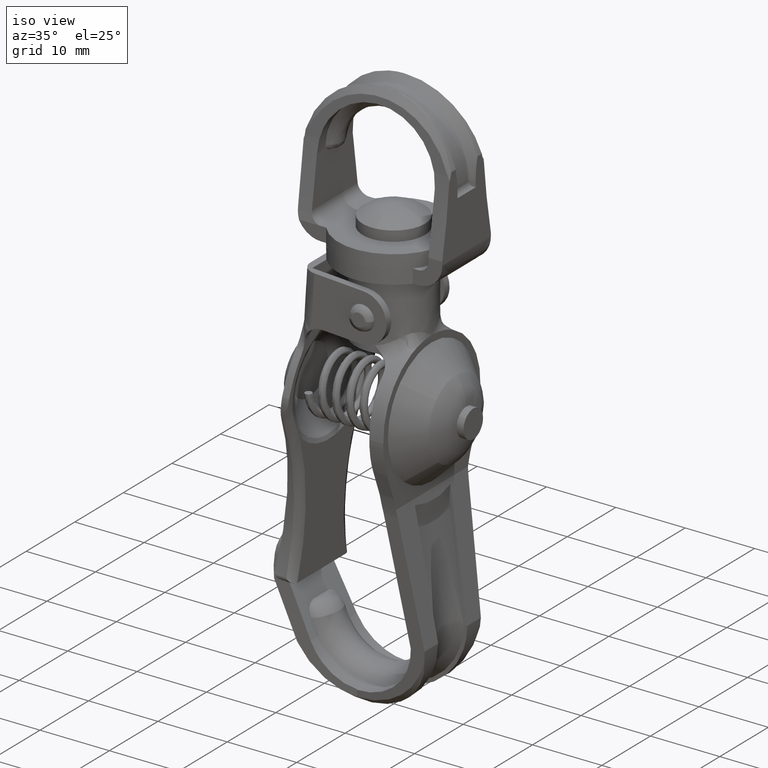
[diagram: clean part render]
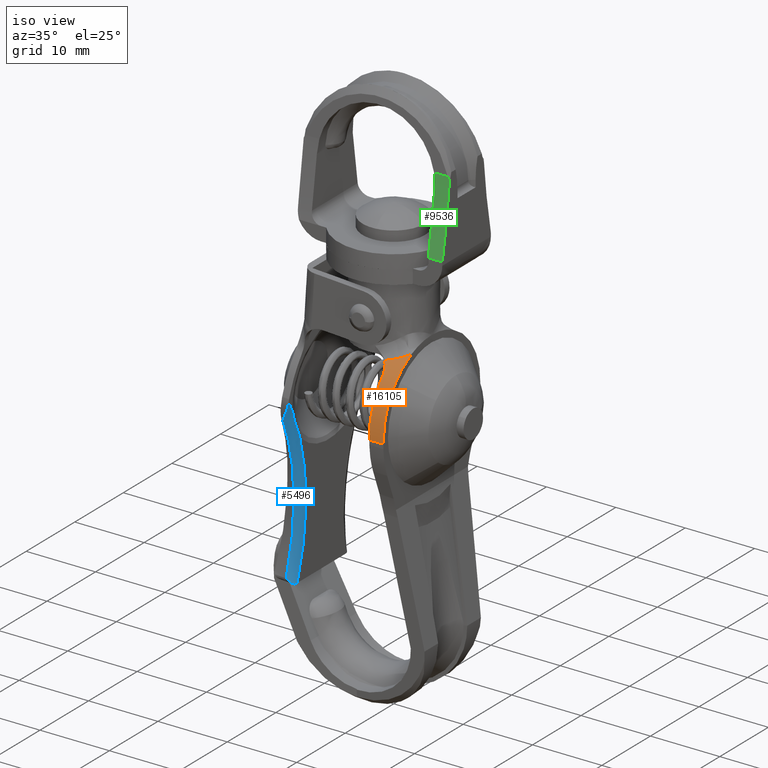
[diagram: same view with three faces highlighted in distinct colors, each labeled with its STEP entity id]
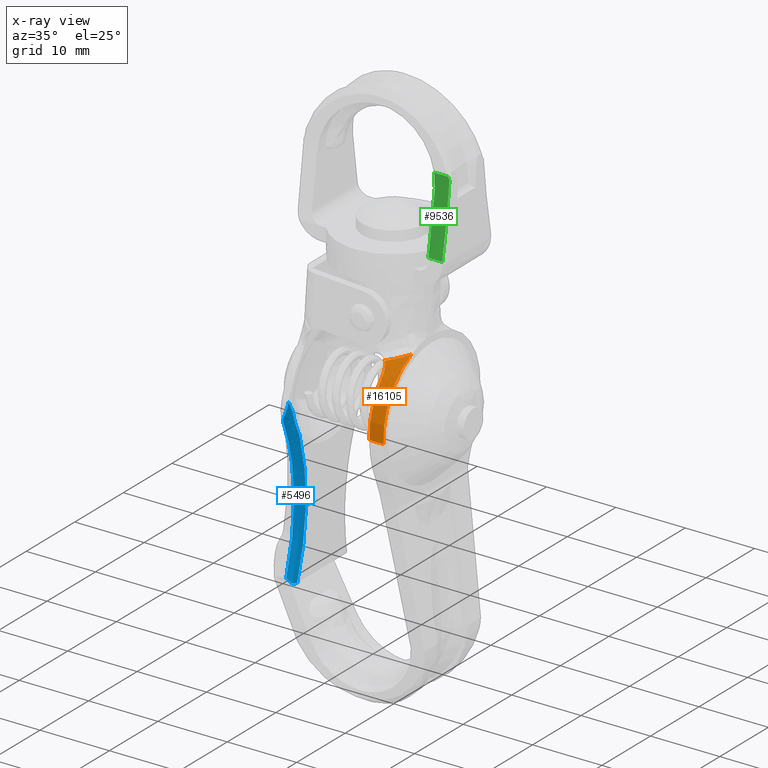
[diagram: x-ray of the same camera — body ghosted, the three highlighted faces saturated]
A machine part, iso view with three faces highlighted in distinct colors.
The next image is the same camera in x-ray (body ghosted, the three faces saturated) — at least one of them is partly hidden behind the body in this view.
Their STEP definitions:

[orange] entity #16105 — the highlighted face is a freeform B-spline surface patch.
#14485=CARTESIAN_POINT('',(3.704473995661685,-7.353892884456830,6.906123182015670));
#14486=VERTEX_POINT('',#14485);
#14492=CARTESIAN_POINT('',(2.932842504623310,-5.814644952985891,8.238389407936412));
#14493=VERTEX_POINT('',#14492);
#14494=CARTESIAN_POINT('',(2.932842504623310,-5.814644952985891,8.238389407936412));
#14495=CARTESIAN_POINT('',(3.067483014370076,-5.924073490844959,8.164995647464936));
#14496=CARTESIAN_POINT('',(3.180983512496648,-6.043734293015205,8.080167105601763));
#14497=CARTESIAN_POINT('',(3.301559189657866,-6.201974931807095,7.960368768543419));
#14498=CARTESIAN_POINT('',(3.324591305818853,-6.234066636130516,7.935713429474466));
#14499=CARTESIAN_POINT('',(3.368556967564027,-6.299068274945930,7.884998488260407));
#14500=CARTESIAN_POINT('',(3.389550085948371,-6.332081949129399,7.858854713257275));
#14501=CARTESIAN_POINT('',(3.448931046570505,-6.431355571619094,7.779017706729446));
#14502=CARTESIAN_POINT('',(3.483753749177327,-6.497803912196587,7.723966852646108));
#14503=CARTESIAN_POINT('',(3.575728291840640,-6.697387697437594,7.553508462268958));
#14504=CARTESIAN_POINT('',(3.620490457498626,-6.830738408417887,7.432814951041432));
#14505=CARTESIAN_POINT('',(3.667044382723867,-7.029676484187871,7.241359445320678));
#14506=CARTESIAN_POINT('',(3.679075971307249,-7.095819203849215,7.175780168891687));
#14507=CARTESIAN_POINT('',(3.696520449852591,-7.226082471790815,7.042683713128283));
#14508=CARTESIAN_POINT('',(3.701985293785278,-7.290403943559306,6.974977267263065));
#14509=CARTESIAN_POINT('',(3.704473995661690,-7.353892884456830,6.906123182015681));
#14510=B_SPLINE_CURVE_WITH_KNOTS('',3,(#14494,#14495,#14496,#14497,#14498,#14499,#14500,#14501,#14502,#14503,#14504,#14505,#14506,#14507,#14508,#14509),.UNSPECIFIED.,.F.,.U.,(4,2,2,2,2,2,2,4),(0.0,0.249999999999998,0.312499999999999,0.374999999999999,0.500000000000000,0.750000000000000,0.875000000000000,1.0),.UNSPECIFIED.);
#14511=EDGE_CURVE('',#14493,#14486,#14510,.T.);
#14741=CARTESIAN_POINT('',(5.647764682000930,-4.249182927994040,9.253716945517999));
#14742=VERTEX_POINT('',#14741);
#14872=CARTESIAN_POINT('',(5.647764682000941,-4.249182927994040,9.253716945517990));
#14873=CARTESIAN_POINT('',(5.453398689945063,-4.426713345748622,9.163303977775854));
#14874=CARTESIAN_POINT('',(5.250753499541634,-4.591122085540752,9.072417934927030));
#14875=CARTESIAN_POINT('',(4.829653671923597,-4.896581916719367,8.892483856138558));
#14876=CARTESIAN_POINT('',(4.611192873254055,-5.037617532269877,8.803426252419401));
#14877=CARTESIAN_POINT('',(4.158268222279747,-5.297754743192515,8.629930631522521));
#14878=CARTESIAN_POINT('',(3.923804810698989,-5.416852077282035,8.545484635422522));
#14879=CARTESIAN_POINT('',(3.559335311268981,-5.579273143178678,8.424575040579947));
#14880=CARTESIAN_POINT('',(3.436128774582945,-5.630507583337516,8.385377710743146));
#14881=CARTESIAN_POINT('',(3.186824775327522,-5.726992155774689,8.309757602140662));
#14882=CARTESIAN_POINT('',(3.060630328834254,-5.772285704262623,8.273302416284194));
#14883=CARTESIAN_POINT('',(2.932842504623309,-5.814644952985891,8.238389407936412));
#14884=B_SPLINE_CURVE_WITH_KNOTS('',3,(#14872,#14873,#14874,#14875,#14876,#14877,#14878,#14879,#14880,#14881,#14882,#14883),.UNSPECIFIED.,.F.,.U.,(4,2,2,2,2,4),(0.0,0.250000000000000,0.500000000000000,0.750000000000000,0.875000000000000,1.0),.UNSPECIFIED.);
#14885=EDGE_CURVE('',#14742,#14493,#14884,.T.);
#15854=CARTESIAN_POINT('',(3.964860946678015,-9.990651710268558,-0.297915796102802));
#15855=VERTEX_POINT('',#15854);
#15856=CARTESIAN_POINT('',(5.990358248113680,-9.990651710268580,-0.224705050268027));
#15857=VERTEX_POINT('',#15856);
#15858=CARTESIAN_POINT('',(3.964860946678015,-9.990651710268558,-0.297915796102802));
#15859=CARTESIAN_POINT('',(5.990358248113680,-9.990651710268580,-0.224705050268027));
#15860=QUASI_UNIFORM_CURVE('',1,(#15858,#15859),.UNSPECIFIED.,.F.,.U.);
#15861=EDGE_CURVE('',#15855,#15857,#15860,.T.);
#15993=CARTESIAN_POINT('',(5.990358248113680,-9.990651710268580,-0.224705050268027));
#15994=CARTESIAN_POINT('',(5.971583838942586,-10.013167752909551,0.294720270132207));
#15995=CARTESIAN_POINT('',(5.932799615752554,-9.975757761932284,1.367750445056557));
#15996=CARTESIAN_POINT('',(5.872954524814364,-9.647793642131100,3.023464627679918));
#15997=CARTESIAN_POINT('',(5.818099863733885,-9.058889982501164,4.541110250906589));
#15998=CARTESIAN_POINT('',(5.761711016773591,-8.143098373489087,6.101201683474104));
#15999=CARTESIAN_POINT('',(5.712776048223886,-6.979640319211206,7.455069146683912));
#16000=CARTESIAN_POINT('',(5.673126806859736,-5.576139683977968,8.552031491090878));
#16001=CARTESIAN_POINT('',(5.654809899186152,-4.664732225281518,9.058799270060298));
#16002=CARTESIAN_POINT('',(5.647764682000930,-4.249182927994040,9.253716945517999));
#16003=B_SPLINE_CURVE_WITH_KNOTS('',3,(#15993,#15994,#15995,#15996,#15997,#15998,#15999,#16000,#16001,#16002),.UNSPECIFIED.,.F.,.U.,(4,1,1,1,1,1,1,4),(0.000000052916629,1.560759367172324,3.213363644984664,5.049575800225398,6.426712930895320,8.630166471725074,10.374571651493570,11.751717420205649),.UNSPECIFIED.);
#16004=EDGE_CURVE('',#15857,#14742,#16003,.T.);
#16074=CARTESIAN_POINT('',(5.710893573673974,-3.903718066731711,9.410355303689590));
#16075=CARTESIAN_POINT('',(2.823743870020613,-3.903718066731711,9.306000495123806));
#16076=CARTESIAN_POINT('',(5.814598180297007,-10.674798023947035,6.541194520452282));
#16077=CARTESIAN_POINT('',(2.927448476643647,-10.674798023947035,6.436839711886495));
#16078=CARTESIAN_POINT('',(6.078966429236269,-9.951526197922838,-0.772993700200594));
#16079=CARTESIAN_POINT('',(3.191816725582909,-9.951526197922838,-0.877348508766379));
#16087=(BOUNDED_SURFACE()B_SPLINE_SURFACE(1,2,((#16074,#16076,#16078),(#16075,#16077,#16079)),.UNSPECIFIED.,.F.,.F.,.U.)B_SPLINE_SURFACE_WITH_KNOTS((2,2),(3,3),(0.0,2.889035018371444),(0.0,13.125386693727220),.UNSPECIFIED.)GEOMETRIC_REPRESENTATION_ITEM()RATIONAL_B_SPLINE_SURFACE(((1.0,0.802515419671084,0.992389697667664),(1.0,0.802515419671084,0.992389697667664)))REPRESENTATION_ITEM('')SURFACE());
#16088=ORIENTED_EDGE('',*,*,#16004,.T.);
#16089=ORIENTED_EDGE('',*,*,#14885,.T.);
#16090=ORIENTED_EDGE('',*,*,#14511,.T.);
#16091=CARTESIAN_POINT('',(3.964860946678015,-9.990651710268558,-0.297915796102802));
#16092=CARTESIAN_POINT('',(3.945611863007761,-10.013746299942730,0.234642185440968));
#16093=CARTESIAN_POINT('',(3.908466037501571,-9.975868565989750,1.262343357778780));
#16094=CARTESIAN_POINT('',(3.857394163860893,-9.702995648871985,2.675331861837540));
#16095=CARTESIAN_POINT('',(3.803938972598715,-9.202732934883329,4.154258820092077));
#16096=CARTESIAN_POINT('',(3.752585324886316,-8.451541742581673,5.575043073465872));
#16097=CARTESIAN_POINT('',(3.718642083734946,-7.715371670673282,6.514139411989918));
#16098=CARTESIAN_POINT('',(3.704473995661685,-7.353892884456830,6.906123182015670));
#16099=B_SPLINE_CURVE_WITH_KNOTS('',3,(#16091,#16092,#16093,#16094,#16095,#16096,#16097,#16098),.UNSPECIFIED.,.F.,.U.,(4,1,1,1,1,4),(0.000000014893383,1.600222269831716,3.077368118420968,4.308284312007594,6.277810105959688,7.878032360897890),.UNSPECIFIED.);
#16100=EDGE_CURVE('',#15855,#14486,#16099,.T.);
#16101=ORIENTED_EDGE('',*,*,#16100,.F.);
#16102=ORIENTED_EDGE('',*,*,#15861,.T.);
#16103=EDGE_LOOP('',(#16088,#16089,#16090,#16101,#16102));
#16104=FACE_OUTER_BOUND('',#16103,.T.);
#16105=ADVANCED_FACE('',(#16104),#16087,.T.);

[blue] entity #5496 — the highlighted face is a freeform B-spline surface patch.
#4847=CARTESIAN_POINT('',(-8.111113999999789,-8.020887225031480,-1.338465833992412));
#4848=VERTEX_POINT('',#4847);
#4860=CARTESIAN_POINT('',(-8.111113999999789,-6.234676845374630,-5.220625182790630));
#4861=VERTEX_POINT('',#4860);
#4862=CARTESIAN_POINT('',(-8.111113999999789,-8.020887225031480,-1.338465833992416));
#4863=CARTESIAN_POINT('',(-8.111113999999793,-7.963035476039713,-1.507112894285488));
#4864=CARTESIAN_POINT('',(-8.112382693885488,-7.903085728195177,-1.675388827458695));
#4865=CARTESIAN_POINT('',(-8.115800445750471,-7.779099122009066,-2.009835110762253));
#4866=CARTESIAN_POINT('',(-8.117949588102221,-7.715034852080366,-2.176226053313760));
#4867=CARTESIAN_POINT('',(-8.123882762982293,-7.516550372734356,-2.672885421342822));
#4868=CARTESIAN_POINT('',(-8.126898180099989,-7.375831171991509,-3.000639489041136));
#4869=CARTESIAN_POINT('',(-8.126898180099991,-7.077343721437489,-3.649373736621674));
#4870=CARTESIAN_POINT('',(-8.123882762982291,-6.919981965336392,-3.969470440864758));
#4871=CARTESIAN_POINT('',(-8.117949588102221,-6.671927102338390,-4.443322106827143));
#4872=CARTESIAN_POINT('',(-8.115800445750470,-6.587241471228235,-4.600225007782322));
#4873=CARTESIAN_POINT('',(-8.112382693885488,-6.413911556215162,-4.911968067834466));
#4874=CARTESIAN_POINT('',(-8.111113999999791,-6.325117578483775,-5.066972556384238));
#4875=CARTESIAN_POINT('',(-8.111113999999789,-6.234676845374630,-5.220625182790630));
#4876=B_SPLINE_CURVE_WITH_KNOTS('',3,(#4862,#4863,#4864,#4865,#4866,#4867,#4868,#4869,#4870,#4871,#4872,#4873,#4874,#4875),.UNSPECIFIED.,.F.,.U.,(4,2,2,2,2,2,4),(0.0,0.125000000000000,0.250000000000000,0.500000000000000,0.750000000000000,0.875000000000000,1.0),.UNSPECIFIED.);
#4877=EDGE_CURVE('',#4848,#4861,#4876,.T.);
#5167=CARTESIAN_POINT('',(-9.111113999999748,-5.850394112787550,-24.643796227272752));
#5168=VERTEX_POINT('',#5167);
#5169=CARTESIAN_POINT('',(-8.187251576542691,-5.363492406830431,-25.257491999999999));
#5170=VERTEX_POINT('',#5169);
#5171=CARTESIAN_POINT('',(-9.111113999999748,-5.850394112787550,-24.643796227272752));
#5172=CARTESIAN_POINT('',(-9.066597456278835,-5.857497477248077,-24.674216358038411));
#5173=CARTESIAN_POINT('',(-9.021509676745701,-5.861804002736861,-24.705701881198980));
#5174=CARTESIAN_POINT('',(-8.932559380039141,-5.864360670305960,-24.768790038026410));
#5175=CARTESIAN_POINT('',(-8.888584956021761,-5.862670619610713,-24.800463119424379));
#5176=CARTESIAN_POINT('',(-8.801469231371218,-5.853110874521246,-24.863789513212691));
#5177=CARTESIAN_POINT('',(-8.758329336462831,-5.845247587557293,-24.895445972703520));
#5178=CARTESIAN_POINT('',(-8.672742266643288,-5.822573123657877,-24.958400556759170));
#5179=CARTESIAN_POINT('',(-8.630025056481731,-5.807613394871149,-24.989902155992301));
#5180=CARTESIAN_POINT('',(-8.547510709892853,-5.770359566257266,-25.050266737992480));
#5181=CARTESIAN_POINT('',(-8.507502870563418,-5.748071665870271,-25.079296602486000));
#5182=CARTESIAN_POINT('',(-8.430047164906574,-5.694718470996731,-25.133987289587669));
#5183=CARTESIAN_POINT('',(-8.392336733643070,-5.663301503666474,-25.159819203942529));
#5184=CARTESIAN_POINT('',(-8.340211962210690,-5.609992215703992,-25.193010096776419));
#5185=CARTESIAN_POINT('',(-8.323490240589672,-5.591142349311309,-25.203206353270840));
#5186=CARTESIAN_POINT('',(-8.291400673322704,-5.551040604842259,-25.221508653198679));
#5187=CARTESIAN_POINT('',(-8.275919214407397,-5.529606347536459,-25.229667159100771));
#5188=CARTESIAN_POINT('',(-8.232568875118545,-5.462638741008902,-25.249775346350312));
#5189=CARTESIAN_POINT('',(-8.207875254122444,-5.414797000137155,-25.257491999999999));
#5190=CARTESIAN_POINT('',(-8.187251576542691,-5.363492406830431,-25.257491999999999));
#5191=B_SPLINE_CURVE_WITH_KNOTS('',3,(#5171,#5172,#5173,#5174,#5175,#5176,#5177,#5178,#5179,#5180,#5181,#5182,#5183,#5184,#5185,#5186,#5187,#5188,#5189,#5190),.UNSPECIFIED.,.F.,.U.,(4,2,2,2,2,2,2,2,2,4),(0.0,0.124999999999999,0.249999999999999,0.374999999999998,0.499999999999997,0.624999999999996,0.749999999999995,0.812499999999996,0.874999999999996,1.0),.UNSPECIFIED.);
#5192=EDGE_CURVE('',#5168,#5170,#5191,.T.);
#5405=CARTESIAN_POINT('',(-8.113521678711397,-5.265943238730278,-26.630727057100103));
#5406=CARTESIAN_POINT('',(-8.113521678711395,-0.894629661462598,-11.604761865099075));
#5407=CARTESIAN_POINT('',(-8.113521678711399,-9.592338371595986,1.404383976796185));
#5408=CARTESIAN_POINT('',(-8.033777861825994,-6.367371043196563,-26.310302628151824));
#5409=CARTESIAN_POINT('',(-8.033777861825993,-2.145428517047235,-11.797785893948209));
#5410=CARTESIAN_POINT('',(-8.033777861825993,-10.545930021751555,0.766827714281393));
#5411=CARTESIAN_POINT('',(-9.180837787719447,-6.290389979100159,-26.332697753282034));
#5412=CARTESIAN_POINT('',(-9.180837787719444,-2.058007601683537,-11.784295045908296));
#5413=CARTESIAN_POINT('',(-9.180837787719447,-10.479281531814451,0.811387838250208));
#5421=(BOUNDED_SURFACE()B_SPLINE_SURFACE(2,2,((#5405,#5408,#5411),(#5406,#5409,#5412),(#5407,#5410,#5413)),.UNSPECIFIED.,.F.,.F.,.U.)B_SPLINE_SURFACE_WITH_KNOTS((3,3),(3,3),(0.0,29.760399225233510),(0.0,1.822370353776502),.UNSPECIFIED.)GEOMETRIC_REPRESENTATION_ITEM()RATIONAL_B_SPLINE_SURFACE(((0.858144637585666,0.561573838949323,0.853390923715780),(0.778184690598158,0.509247678037460,0.773873916871905),(0.859026191173277,0.562150731713959,0.854267593915053)))REPRESENTATION_ITEM('')SURFACE());
#5422=CARTESIAN_POINT('',(-9.111113999999748,-8.466533957981730,-2.646529059635035));
#5423=VERTEX_POINT('',#5422);
#5424=CARTESIAN_POINT('',(-9.111113999999748,-5.850394112787550,-24.643796227272752));
#5425=CARTESIAN_POINT('',(-9.111113999999736,-5.542470106648572,-23.325317633817360));
#5426=CARTESIAN_POINT('',(-9.111113999999757,-5.140811776686233,-20.940621259299789));
#5427=CARTESIAN_POINT('',(-9.111113999999802,-4.901925599113977,-16.644751530865229));
#5428=CARTESIAN_POINT('',(-9.111113999999615,-5.205405425447482,-12.875185464205710));
#5429=CARTESIAN_POINT('',(-9.111114000000002,-6.010247845840665,-9.011098289773729));
#5430=CARTESIAN_POINT('',(-9.111113999999530,-6.969878259048958,-5.913337018835889));
#5431=CARTESIAN_POINT('',(-9.111113999999860,-7.937354270203171,-3.698255193332341));
#5432=CARTESIAN_POINT('',(-9.111113999999748,-8.466533957981730,-2.646529059635035));
#5433=B_SPLINE_CURVE_WITH_KNOTS('',3,(#5424,#5425,#5426,#5427,#5428,#5429,#5430,#5431,#5432),.UNSPECIFIED.,.F.,.U.,(4,1,1,1,1,1,4),(0.000000010288922,4.061872947679085,7.240745651918113,12.892034795900750,15.364491405779750,19.073176028193821,22.605237110367138),.UNSPECIFIED.);
#5434=EDGE_CURVE('',#5168,#5423,#5433,.T.);
#5435=ORIENTED_EDGE('',*,*,#5434,.F.);
#5436=ORIENTED_EDGE('',*,*,#5192,.T.);
#5437=CARTESIAN_POINT('',(-8.111113999999789,-4.969214828132000,-25.257491999999999));
#5438=VERTEX_POINT('',#5437);
#5439=CARTESIAN_POINT('',(-8.111113999999789,-4.969214828132000,-25.257491999999999));
#5440=CARTESIAN_POINT('',(-8.110990884983250,-5.103897321757256,-25.257491999999949));
#5441=CARTESIAN_POINT('',(-8.136963268904358,-5.238544853217100,-25.257492000000092));
#5442=CARTESIAN_POINT('',(-8.187251576542691,-5.363492406830431,-25.257491999999999));
#5443=B_SPLINE_CURVE_WITH_KNOTS('',3,(#5439,#5440,#5441,#5442),.UNSPECIFIED.,.F.,.U.,(4,4),(0.000000012717705,0.404028532582103),.UNSPECIFIED.);
#5444=EDGE_CURVE('',#5438,#5170,#5443,.T.);
#5445=ORIENTED_EDGE('',*,*,#5444,.F.);
#5446=CARTESIAN_POINT('',(-8.111113999999789,-6.234676845374630,-5.220625182790630));
#5447=CARTESIAN_POINT('',(-8.111113999999772,-5.662414733654090,-6.707267096068197));
#5448=CARTESIAN_POINT('',(-8.111113999999800,-4.932546361633379,-9.100447832654808));
#5449=CARTESIAN_POINT('',(-8.111113999999768,-4.240975125118125,-12.809649721887540));
#5450=CARTESIAN_POINT('',(-8.111113999999811,-3.917994044804263,-16.518612982164850));
#5451=CARTESIAN_POINT('',(-8.111113999999782,-4.086798846972796,-20.826568499362949));
#5452=CARTESIAN_POINT('',(-8.111113999999791,-4.613940256043840,-23.813785848619489));
#5453=CARTESIAN_POINT('',(-8.111113999999789,-4.969214828132000,-25.257491999999999));
#5454=B_SPLINE_CURVE_WITH_KNOTS('',3,(#5446,#5447,#5448,#5449,#5450,#5451,#5452,#5453),.UNSPECIFIED.,.F.,.U.,(4,1,1,1,1,4),(7.745612E-009,4.778928371757262,7.486990209279357,11.310117617559900,15.929762948405140,20.390095880320018),.UNSPECIFIED.);
#5455=EDGE_CURVE('',#4861,#5438,#5454,.T.);
#5456=ORIENTED_EDGE('',*,*,#5455,.F.);
#5457=ORIENTED_EDGE('',*,*,#4877,.F.);
#5458=CARTESIAN_POINT('',(-8.111113999999750,-8.953685750105141,0.279675958894342));
#5459=VERTEX_POINT('',#5458);
#5460=CARTESIAN_POINT('',(-8.111113999999750,-8.953685750105141,0.279675958894342));
#5461=CARTESIAN_POINT('',(-8.111113999999763,-8.627795081033286,-0.250893922793307));
#5462=CARTESIAN_POINT('',(-8.111113999999798,-8.316699823523061,-0.790556280939000));
#5463=CARTESIAN_POINT('',(-8.111113999999789,-8.020887225031480,-1.338465833992412));
#5464=B_SPLINE_CURVE_WITH_KNOTS('',3,(#5460,#5461,#5462,#5463),.UNSPECIFIED.,.F.,.U.,(4,4),(6.889622E-011,1.867997353528542),.UNSPECIFIED.);
#5465=EDGE_CURVE('',#5459,#4848,#5464,.T.);
#5466=ORIENTED_EDGE('',*,*,#5465,.F.);
#5467=CARTESIAN_POINT('',(-9.111113999999748,-8.466533957981730,-2.646529059635035));
#5468=CARTESIAN_POINT('',(-9.096446152767562,-8.479946963507427,-2.619870655012470));
#5469=CARTESIAN_POINT('',(-9.082165010474652,-8.493354096826671,-2.592617536148845));
#5470=CARTESIAN_POINT('',(-9.053248830180319,-8.519462623729705,-2.538302411312164));
#5471=CARTESIAN_POINT('',(-9.038802704529308,-8.532266767558559,-2.511036586043073));
#5472=CARTESIAN_POINT('',(-8.995532287826517,-8.569936149044130,-2.428900974568471));
#5473=CARTESIAN_POINT('',(-8.966774060761587,-8.594058412497644,-2.373694049486069));
#5474=CARTESIAN_POINT('',(-8.880945183255221,-8.663478213138694,-2.206642424626857));
#5475=CARTESIAN_POINT('',(-8.824314621058804,-8.705835947539635,-2.093372722019690));
#5476=CARTESIAN_POINT('',(-8.713239606651200,-8.782659790809944,-1.862496286230988));
#5477=CARTESIAN_POINT('',(-8.659017598020668,-8.816960224410526,-1.745337882472492));
#5478=CARTESIAN_POINT('',(-8.554887987244980,-8.876987271522207,-1.508318814231515));
#5479=CARTESIAN_POINT('',(-8.504887656203133,-8.902775420905320,-1.388282088164520));
#5480=CARTESIAN_POINT('',(-8.410432585456205,-8.945690594333369,-1.144579036948418));
#5481=CARTESIAN_POINT('',(-8.365966335098170,-8.962820510177492,-1.020917593469783));
#5482=CARTESIAN_POINT('',(-8.304884661231089,-8.981635734842303,-0.832081618655595));
#5483=CARTESIAN_POINT('',(-8.285465556139833,-8.986758256388338,-0.768576568980395));
#5484=CARTESIAN_POINT('',(-8.248845339630064,-8.994601426471579,-0.640301525189945));
#5485=CARTESIAN_POINT('',(-8.231600092433716,-8.997323760376222,-0.575341136018625));
#5486=CARTESIAN_POINT('',(-8.184249019490441,-9.001658071390200,-0.380087986056433));
#5487=CARTESIAN_POINT('',(-8.158411689988395,-8.999487845943229,-0.249357655215586));
#5488=CARTESIAN_POINT('',(-8.121885352208812,-8.984653485738914,0.013731796639851));
#5489=CARTESIAN_POINT('',(-8.111113999999791,-8.971996894626990,0.146079587375230));
#5490=CARTESIAN_POINT('',(-8.111113999999750,-8.953685750105141,0.279675958894342));
#5491=B_SPLINE_CURVE_WITH_KNOTS('',3,(#5467,#5468,#5469,#5470,#5471,#5472,#5473,#5474,#5475,#5476,#5477,#5478,#5479,#5480,#5481,#5482,#5483,#5484,#5485,#5486,#5487,#5488,#5489,#5490),.UNSPECIFIED.,.F.,.U.,(4,2,2,2,2,2,2,2,2,2,2,4),(0.0,0.031249999999999,0.062499999999999,0.124999999999999,0.249999999999999,0.374999999999999,0.499999999999999,0.624999999999999,0.687499999999999,0.749999999999999,0.875000000000000,1.0),.UNSPECIFIED.);
#5492=EDGE_CURVE('',#5423,#5459,#5491,.T.);
#5493=ORIENTED_EDGE('',*,*,#5492,.F.);
#5494=EDGE_LOOP('',(#5435,#5436,#5445,#5456,#5457,#5466,#5493));
#5495=FACE_OUTER_BOUND('',#5494,.T.);
#5496=ADVANCED_FACE('',(#5495),#5421,.T.);

[green] entity #9536 — the highlighted face is a freeform B-spline surface patch.
#7597=CARTESIAN_POINT('',(10.500000000000160,-3.536514091533900,32.797379358694052));
#7598=VERTEX_POINT('',#7597);
#7615=CARTESIAN_POINT('',(10.273816575490740,-3.500210683237955,33.206983448503252));
#7616=VERTEX_POINT('',#7615);
#7622=CARTESIAN_POINT('',(10.273816575490740,-3.500210683237955,33.206983448503252));
#7623=CARTESIAN_POINT('',(10.500000000000160,-3.536514091533900,32.797379358694052));
#7624=QUASI_UNIFORM_CURVE('',1,(#7622,#7623),.UNSPECIFIED.,.F.,.U.);
#7625=EDGE_CURVE('',#7616,#7598,#7624,.T.);
#9468=CARTESIAN_POINT('',(8.214122104085313,-3.456247133793145,33.732796401754136));
#9469=CARTESIAN_POINT('',(10.557146834767689,-3.456247133793145,33.732796401754136));
#9470=CARTESIAN_POINT('',(8.214122104085313,-3.925237651746196,27.927830586242742));
#9471=CARTESIAN_POINT('',(10.557146834767680,-3.925237651746196,27.927830586242742));
#9472=CARTESIAN_POINT('',(8.214122104085313,-5.105642086449022,22.224829131243833));
#9473=CARTESIAN_POINT('',(10.557146834767687,-5.105642086449022,22.224829131243833));
#9481=(BOUNDED_SURFACE()B_SPLINE_SURFACE(1,2,((#9468,#9470,#9472),(#9469,#9471,#9473)),.UNSPECIFIED.,.F.,.F.,.U.)B_SPLINE_SURFACE_WITH_KNOTS((2,2),(3,3),(0.0,2.343024730682373),(0.295014714685082,11.933129156145450),.UNSPECIFIED.)GEOMETRIC_REPRESENTATION_ITEM()RATIONAL_B_SPLINE_SURFACE(((0.999865982025698,0.997270791503282,0.998483634600314),(0.999865982025698,0.997270791503282,0.998483634600314)))REPRESENTATION_ITEM('')SURFACE());
#9482=ORIENTED_EDGE('',*,*,#7625,.F.);
#9483=CARTESIAN_POINT('',(8.269875223497870,-3.500210683237955,33.206983448503252));
#9484=VERTEX_POINT('',#9483);
#9485=CARTESIAN_POINT('',(8.269875223497870,-3.500210683237955,33.206983448503252));
#9486=CARTESIAN_POINT('',(10.273816575490740,-3.500210683237955,33.206983448503252));
#9487=QUASI_UNIFORM_CURVE('',1,(#9485,#9486),.UNSPECIFIED.,.F.,.U.);
#9488=EDGE_CURVE('',#9484,#7616,#9487,.T.);
#9489=ORIENTED_EDGE('',*,*,#9488,.F.);
#9490=CARTESIAN_POINT('',(8.500000000000171,-3.690754742306885,31.242507999999901));
#9491=VERTEX_POINT('',#9490);
#9492=CARTESIAN_POINT('',(8.269875223497870,-3.500210683237955,33.206983448503252));
#9493=CARTESIAN_POINT('',(8.422776901954578,-3.555704560136136,32.563349916547153));
#9494=CARTESIAN_POINT('',(8.500150708469450,-3.619799621177600,31.902570667685989));
#9495=CARTESIAN_POINT('',(8.500000000000171,-3.690754742306885,31.242507999999901));
#9496=B_SPLINE_CURVE_WITH_KNOTS('',3,(#9492,#9493,#9494,#9495),.UNSPECIFIED.,.F.,.U.,(4,4),(1.645461E-009,1.991596695429569),.UNSPECIFIED.);
#9497=EDGE_CURVE('',#9484,#9491,#9496,.T.);
#9498=ORIENTED_EDGE('',*,*,#9497,.T.);
#9499=CARTESIAN_POINT('',(8.500000000000171,-5.000008132483070,22.742507999999798));
#9500=VERTEX_POINT('',#9499);
#9501=CARTESIAN_POINT('',(8.500000000000171,-5.000008132483070,22.742507999999798));
#9502=CARTESIAN_POINT('',(8.500000000000171,-4.151188346627333,26.962596520283800));
#9503=CARTESIAN_POINT('',(8.500000000000171,-3.690754742306885,31.242507999999901));
#9511=(BOUNDED_CURVE()B_SPLINE_CURVE(2,(#9501,#9502,#9503),.UNSPECIFIED.,.F.,.U.)CURVE()GEOMETRIC_REPRESENTATION_ITEM()QUASI_UNIFORM_CURVE()RATIONAL_B_SPLINE_CURVE((1.0,0.998957729942634,1.0))REPRESENTATION_ITEM(''));
#9512=EDGE_CURVE('',#9500,#9491,#9511,.T.);
#9513=ORIENTED_EDGE('',*,*,#9512,.F.);
#9514=CARTESIAN_POINT('',(10.500000000000179,-5.000008132483070,22.742507999999798));
#9515=VERTEX_POINT('',#9514);
#9516=CARTESIAN_POINT('',(8.500000000000171,-5.000008132483070,22.742507999999798));
#9517=CARTESIAN_POINT('',(10.500000000000179,-5.000008132483070,22.742507999999798));
#9518=QUASI_UNIFORM_CURVE('',1,(#9516,#9517),.UNSPECIFIED.,.F.,.U.);
#9519=EDGE_CURVE('',#9500,#9515,#9518,.T.);
#9520=ORIENTED_EDGE('',*,*,#9519,.T.);
#9521=CARTESIAN_POINT('',(10.500000000000160,-3.536514091533900,32.797379358694052));
#9522=CARTESIAN_POINT('',(10.500000000000169,-3.996749120902827,27.730424959547754));
#9523=CARTESIAN_POINT('',(10.500000000000179,-5.000008132483070,22.742507999999798));
#9531=(BOUNDED_CURVE()B_SPLINE_CURVE(2,(#9521,#9522,#9523),.UNSPECIFIED.,.F.,.U.)CURVE()GEOMETRIC_REPRESENTATION_ITEM()QUASI_UNIFORM_CURVE()RATIONAL_B_SPLINE_CURVE((1.0,0.998544855216670,1.0))REPRESENTATION_ITEM(''));
#9532=EDGE_CURVE('',#7598,#9515,#9531,.T.);
#9533=ORIENTED_EDGE('',*,*,#9532,.F.);
#9534=EDGE_LOOP('',(#9482,#9489,#9498,#9513,#9520,#9533));
#9535=FACE_OUTER_BOUND('',#9534,.T.);
#9536=ADVANCED_FACE('',(#9535),#9481,.F.);